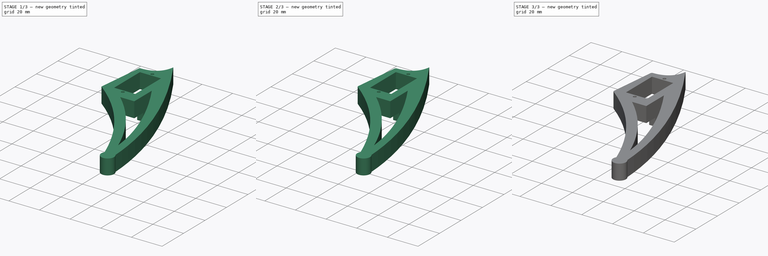
[diagram: build sequence overview — one tinted view per stage of 3, left to right]
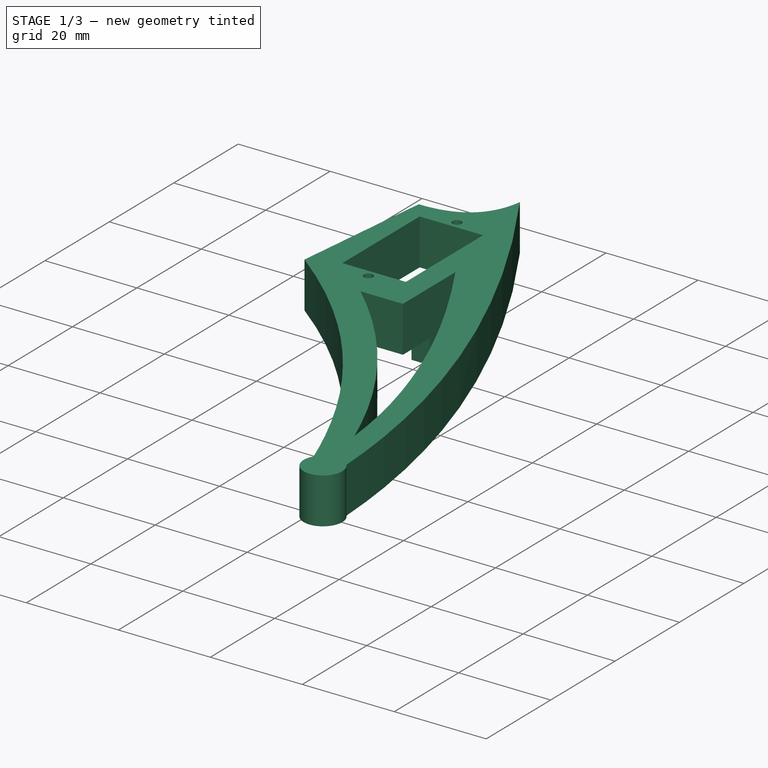
[diagram: stage 1 of 3 — iso view after this stage's code; geometry added in this stage tinted green]
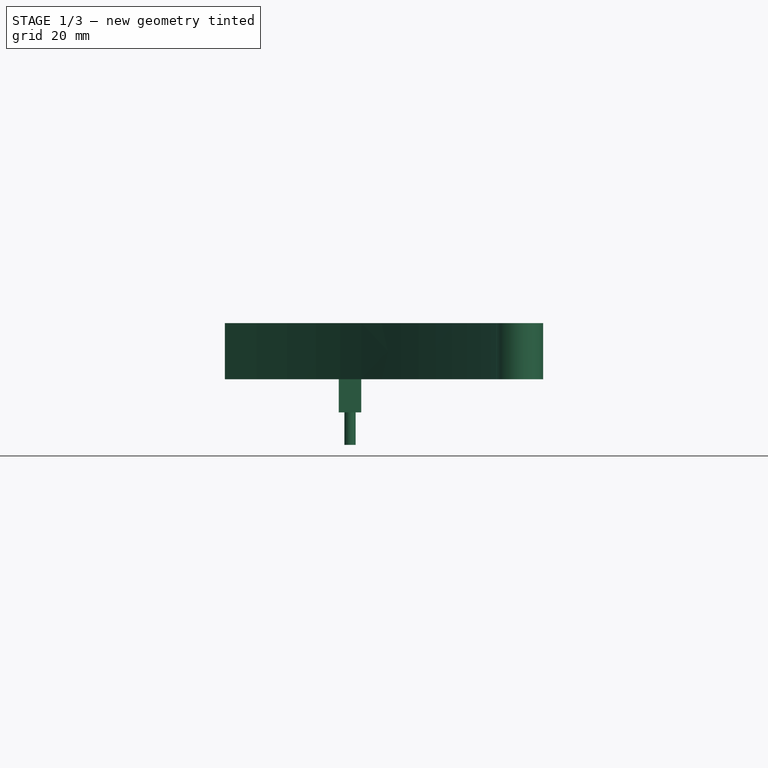
[diagram: stage 1 of 3 — front view after this stage's code; geometry added in this stage tinted green]
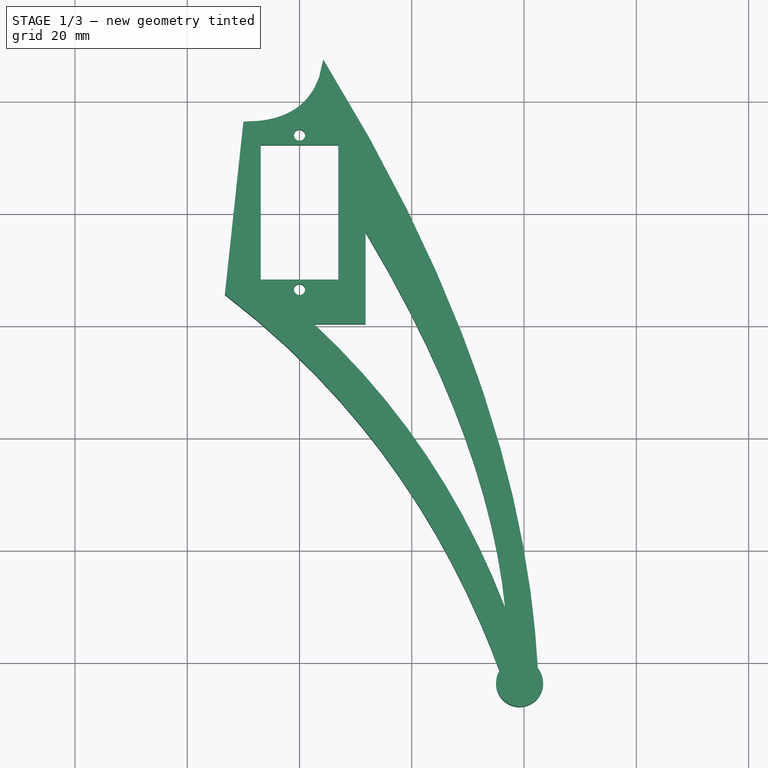
[diagram: stage 1 of 3 — top view after this stage's code; geometry added in this stage tinted green]
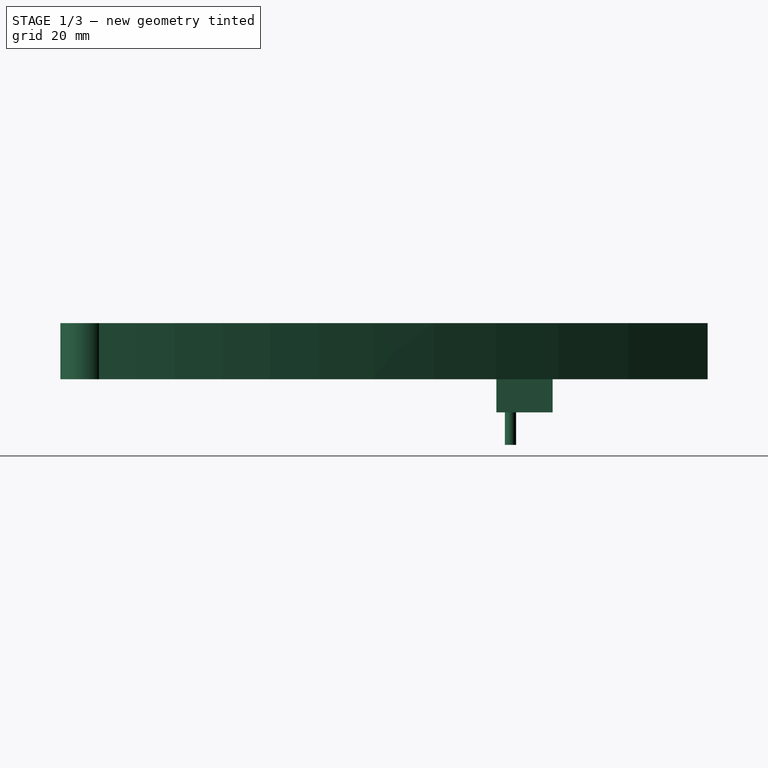
[diagram: stage 1 of 3 — right view after this stage's code; geometry added in this stage tinted green]
FCSTD DOCUMENT  (FreeCAD 0.21R33668 +26 (Git))
Label: pata-apoyo
License: All rights reserved
LicenseURL: http://en.wikipedia.org/wiki/All_rights_reserved
objects: Part::Cylinder×2, Part::Cut×2, Sketcher::SketchObject×1, Part::Extrusion×1, Part::Fillet×1, Part::Box×1, Part::MultiFuse×1, App::DocumentObjectGroup×1
note: 9 computed .brp shape members not serialized (recipe doc carries the construction recipe); baked Part::Feature solids carry a one-line shape summary decoded from their .brp

FEATURE [Sketcher::SketchObject] Sketch003
  FullyConstrained = false
  sketch-geometry (40):
    g0: LineSegment StartX=-6.9 StartY=12 StartZ=0 EndX=-6.9 EndY=-12 EndZ=0
    g1: LineSegment StartX=-6.9 StartY=-12 StartZ=0 EndX=6.9 EndY=-12 EndZ=0
    g2: LineSegment StartX=6.9 StartY=-12 StartZ=0 EndX=6.9 EndY=12 EndZ=0
    g3: LineSegment StartX=6.9 StartY=12 StartZ=0 EndX=-6.9 EndY=12 EndZ=0
    g4: LineSegment StartX=-10 StartY=16.1284 StartZ=0 EndX=-13.2973 EndY=-14.6392 EndZ=0
    g5: Circle CenterX=0 CenterY=-13.75 CenterZ=0 NormalX=0 NormalY=0 NormalZ=1 AngleXU=0 Radius=1
    g6: Circle CenterX=0 CenterY=13.75 CenterZ=0 NormalX=0 NormalY=0 NormalZ=1 AngleXU=0 Radius=1
    g7: Circle CenterX=-13.2973 CenterY=-14.6392 CenterZ=0 NormalX=0 NormalY=0 NormalZ=1 AngleXU=0 Radius=1
    g8: Circle CenterX=20.3473 CenterY=-40.3456 CenterZ=0 NormalX=0 NormalY=0 NormalZ=1 AngleXU=0 Radius=1
    g9: Circle CenterX=35.6272 CenterY=-81.673 CenterZ=0 NormalX=0 NormalY=0 NormalZ=1 AngleXU=0 Radius=1
    g10: BSplineCurve PolesCount=3 KnotsCount=2 Degree=2 IsPeriodic=0
    g11: GeomPoint X=-13.2973 Y=-14.6392 Z=0
    g12: GeomPoint X=35.6272 Y=-81.673 Z=0
    g13: Circle CenterX=2.56915 CenterY=-19.8919 CenterZ=0 NormalX=0 NormalY=0 NormalZ=1 AngleXU=0 Radius=1
    g14: Circle CenterX=25.2995 CenterY=-40.9646 CenterZ=0 NormalX=0 NormalY=0 NormalZ=1 AngleXU=0 Radius=1
    g15: Circle CenterX=36.6481 CenterY=-70.471 CenterZ=0 NormalX=0 NormalY=0 NormalZ=1 AngleXU=0 Radius=1
    g16: BSplineCurve PolesCount=3 KnotsCount=2 Degree=2 IsPeriodic=0
    g17: GeomPoint X=2.56915 Y=-19.8919 Z=0
    g18: GeomPoint X=36.6481 Y=-70.471 Z=0
    g19: Circle CenterX=36.6481 CenterY=-70.471 CenterZ=0 NormalX=0 NormalY=0 NormalZ=1 AngleXU=0 Radius=1
    g20: Circle CenterX=33.5686 CenterY=-40 CenterZ=0 NormalX=0 NormalY=0 NormalZ=1 AngleXU=0 Radius=1
    g21: Circle CenterX=11.784 CenterY=-3.5789 CenterZ=0 NormalX=0 NormalY=0 NormalZ=1 AngleXU=0 Radius=1
    g22: BSplineCurve PolesCount=3 KnotsCount=2 Degree=2 IsPeriodic=0
    g23: GeomPoint X=36.6481 Y=-70.471 Z=0
    g24: GeomPoint X=11.784 Y=-3.5789 Z=0
    g25: ArcOfCircle CenterX=39.2027 CenterY=-83.8716 CenterZ=0 NormalX=0 NormalY=0 NormalZ=1 AngleXU=0 Radius=4.19733 StartAngle=2.59028 EndAngle=6.96895
    g26: Circle CenterX=4.23934 CenterY=27.2126 CenterZ=0 NormalX=0 NormalY=0 NormalZ=1 AngleXU=0 Radius=1
    g27: Circle CenterX=39.7215 CenterY=-30.2088 CenterZ=0 NormalX=0 NormalY=0 NormalZ=1 AngleXU=0 Radius=1
    g28: Circle CenterX=42.4511 CenterY=-81.2136 CenterZ=0 NormalX=0 NormalY=0 NormalZ=1 AngleXU=0 Radius=1
    g29: BSplineCurve PolesCount=3 KnotsCount=2 Degree=2 IsPeriodic=0
    g30: GeomPoint X=4.23934 Y=27.2126 Z=0
    g31: GeomPoint X=42.4511 Y=-81.2136 Z=0
    g32: LineSegment StartX=2.56915 StartY=-19.8919 StartZ=0 EndX=11.784 EndY=-19.8919 EndZ=0
    g33: LineSegment StartX=11.784 StartY=-19.8919 StartZ=0 EndX=11.784 EndY=-3.5789 EndZ=0
    g34: Circle CenterX=-10 CenterY=16.1284 CenterZ=0 NormalX=0 NormalY=0 NormalZ=1 AngleXU=0 Radius=1
    g35: Circle CenterX=2.6632 CenterY=16.087 CenterZ=0 NormalX=0 NormalY=0 NormalZ=1 AngleXU=0 Radius=1
    g36: Circle CenterX=4.23934 CenterY=27.2126 CenterZ=0 NormalX=0 NormalY=0 NormalZ=1 AngleXU=0 Radius=1
    g37: BSplineCurve PolesCount=3 KnotsCount=2 Degree=2 IsPeriodic=0
    g38: GeomPoint X=-10 Y=16.1284 Z=0
    g39: GeomPoint X=4.23934 Y=27.2126 Z=0
  constraints (68):
    c: Vertical(g0)
    c: Coincident(g0,g1)
    c: Horizontal(g1)
    c: Coincident(g1,g2)
    c: Vertical(g2)
    c: Coincident(g2,g3)
    c: Coincident(g3,g0)
    c: Horizontal(g3)
    c: Distance(g3) = 13.8
    c: Distance(g2) = 24
    c: Symmetric(g0,g1,g-1)
    c: Diameter(g5) = 2
    c: Distance(g5,g1) = 1.75
    c: Symmetric(g5,g6,g-1)
    c: Diameter(g6) = 2
    c: Coincident(g10,g4)
    c: Weight(g7) = 1
    c: Equal(g7,g8)
    c: Equal(g7,g9)
    c: InternalAlignment(g7,g10)
    c: InternalAlignment(g8,g10)
    c: InternalAlignment(g9,g10)
    c: InternalAlignment(g11,g10)
    c: InternalAlignment(g12,g10)
    c: Weight(g13) = 1
    c: Equal(g13,g14)
    c: Equal(g13,g15)
    c: InternalAlignment(g13,g16)
    c: InternalAlignment(g14,g16)
    c: InternalAlignment(g15,g16)
    c: InternalAlignment(g17,g16)
    c: InternalAlignment(g18,g16)
    c: Coincident(g22,g16)
    c: Weight(g19) = 1
    c: Equal(g19,g20)
    c: Equal(g19,g21)
    c: InternalAlignment(g19,g22)
    c: InternalAlignment(g20,g22)
    c: InternalAlignment(g21,g22)
    c: InternalAlignment(g23,g22)
    c: InternalAlignment(g24,g22)
    c: Coincident(g25,g10)
    c: Weight(g26) = 1
    c: Equal(g26,g27)
    c: Equal(g26,g28)
    c: Coincident(g29,g25)
    c: InternalAlignment(g26,g29)
    c: InternalAlignment(g27,g29)
    c: InternalAlignment(g28,g29)
    c: InternalAlignment(g30,g29)
    c: InternalAlignment(g31,g29)
    c: DistanceY(g25,g4) = 100
    c: Coincident(g32,g16)
    c: Horizontal(g32)
    c: Coincident(g32,g33)
    c: Coincident(g33,g22)
    c: Vertical(g33)
    c: DistanceX(g4,g25) = 52.5
    c: Coincident(g37,g4)
    c: Weight(g34) = 1
    c: Equal(g34,g35)
    c: Equal(g34,g36)
    c: Coincident(g37,g29)
    c: InternalAlignment(g34,g37)
    c: InternalAlignment(g35,g37)
    c: InternalAlignment(g36,g37)
    c: InternalAlignment(g38,g37)
    c: InternalAlignment(g39,g37)
FEATURE [Part::Extrusion] Extrude003  label="pata-apoyo003"
  Base = -> Sketch003
  Dir = (0,0,1)
  DirMode = 2
  FaceMakerClass = Part::FaceMakerBullseye
  LengthFwd = 10
  LengthRev = 0
  Solid = true
  Symmetric = false
FEATURE [Part::Box] Box008  label="Cube"
  AttacherType = Attacher::AttachEngine3D
  Height = 8.9
  Length = 4
  Placement = pos=(7,-10.4,-5.9) rot=(0,0,1;0rad)
  Width = 10
FEATURE [Part::Cylinder] Cylinder019  label="taladro-union-1"
  Angle = 360
  AttacherType = Attacher::AttachEngine3D
  FirstAngle = 0
  Height = 10
  Placement = pos=(9,-7.9,-11.7) rot=(0,0,1;0rad)
  Radius = 1
  SecondAngle = 0
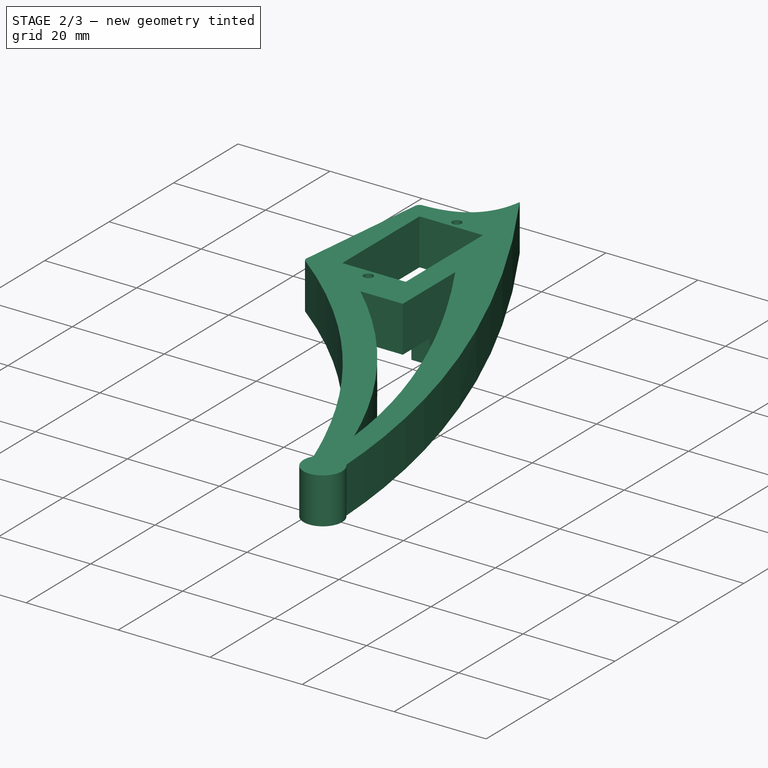
[diagram: stage 2 of 3 — iso view after this stage's code; geometry added in this stage tinted green]
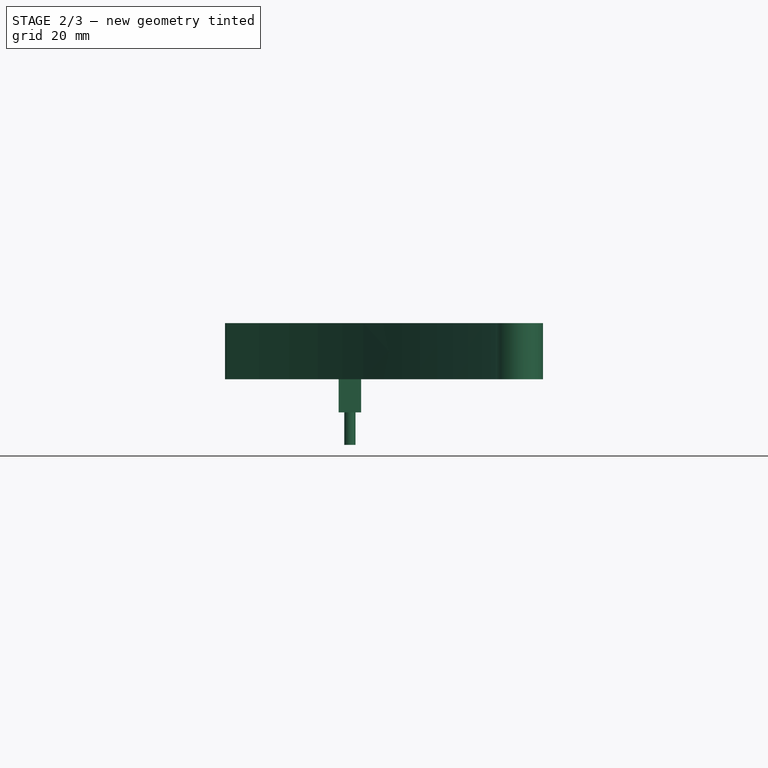
[diagram: stage 2 of 3 — front view after this stage's code; geometry added in this stage tinted green]
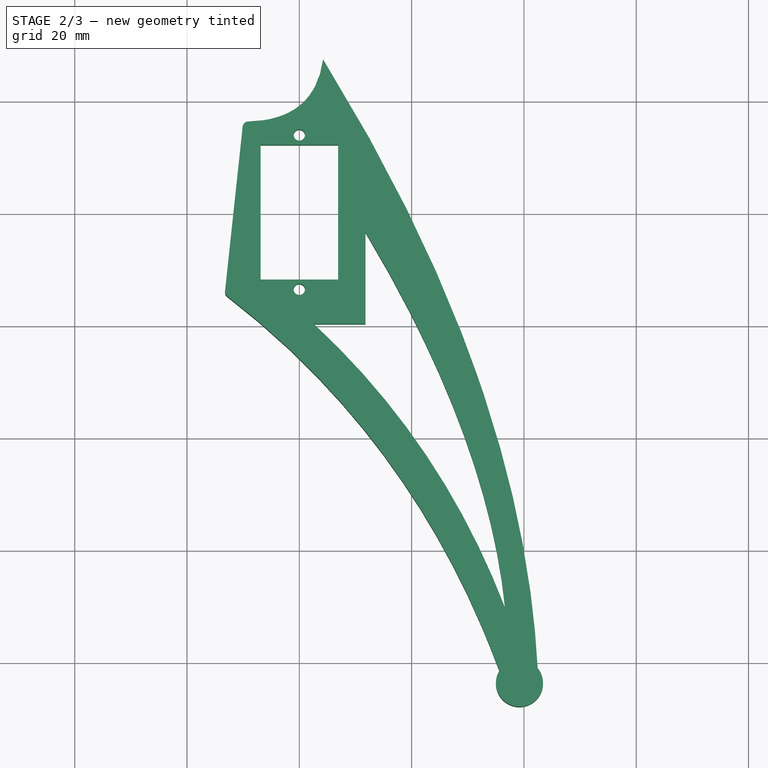
[diagram: stage 2 of 3 — top view after this stage's code; geometry added in this stage tinted green]
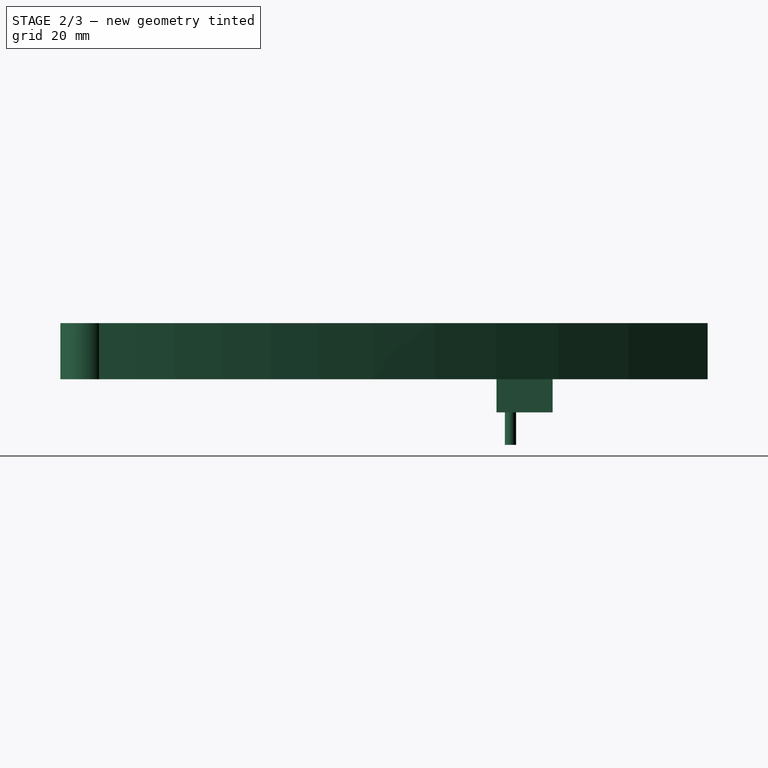
[diagram: stage 2 of 3 — right view after this stage's code; geometry added in this stage tinted green]
FEATURE [Part::Fillet] Fillet001
  Base = -> Extrude003
  Edges = 2 edges r=1: [Edge1,Edge2]
FEATURE [Part::MultiFuse] Fusion012  label="pata"
  Refine = true
  Shapes = -> [Fillet001,Box008]
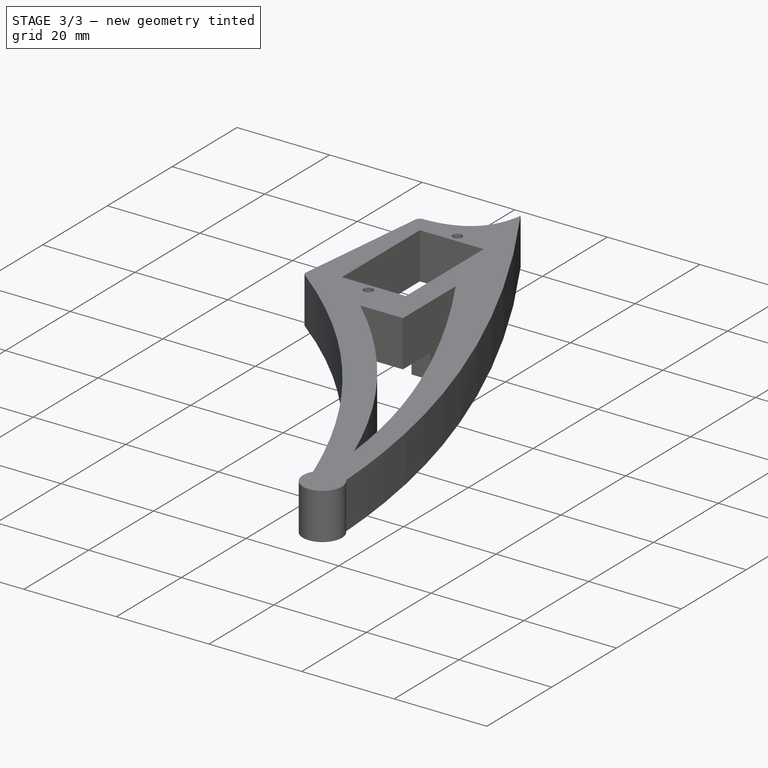
[diagram: stage 3 of 3 — iso view after this stage's code; geometry added in this stage tinted green]
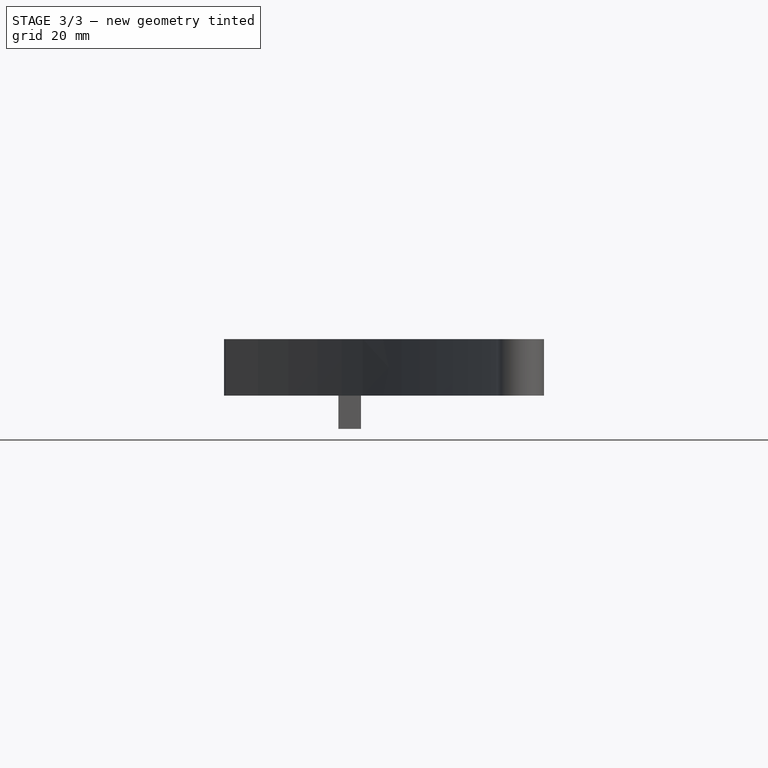
[diagram: stage 3 of 3 — front view after this stage's code; geometry added in this stage tinted green]
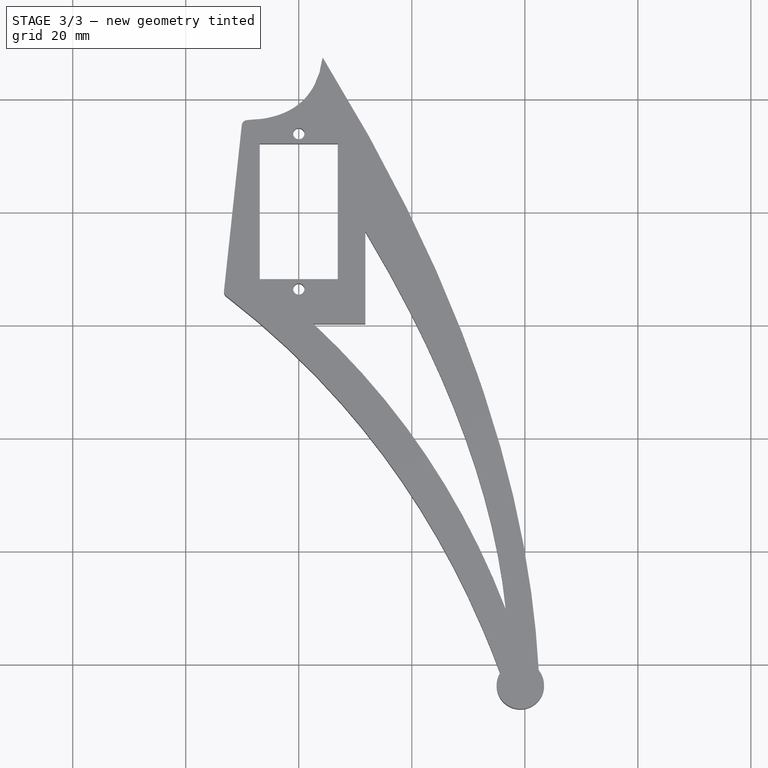
[diagram: stage 3 of 3 — top view after this stage's code; geometry added in this stage tinted green]
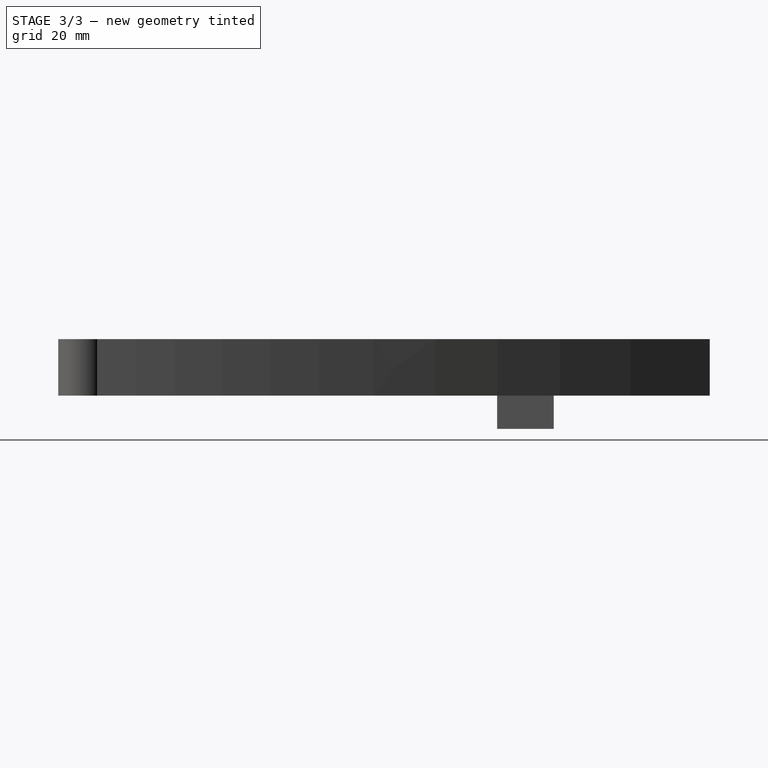
[diagram: stage 3 of 3 — right view after this stage's code; geometry added in this stage tinted green]
FEATURE [Part::Cylinder] Cylinder020  label="taladro-union-2"
  Angle = 360
  AttacherType = Attacher::AttachEngine3D
  FirstAngle = 0
  Height = 10
  Placement = pos=(9,-2.9,-11.7) rot=(0,0,1;0rad)
  Radius = 1
  SecondAngle = 0
FEATURE [Part::Cut] Cut006
  Base = -> Fusion012
  Refine = true
  Tool = -> Cylinder019
FEATURE [Part::Cut] Cut007  label="version-final"
  Base = -> Cut006
  Refine = true
  Tool = -> Cylinder020
FEATURE [App::DocumentObjectGroup] Group001  label="pata-apoyo-pieza"
  Group = -> [Cut007]
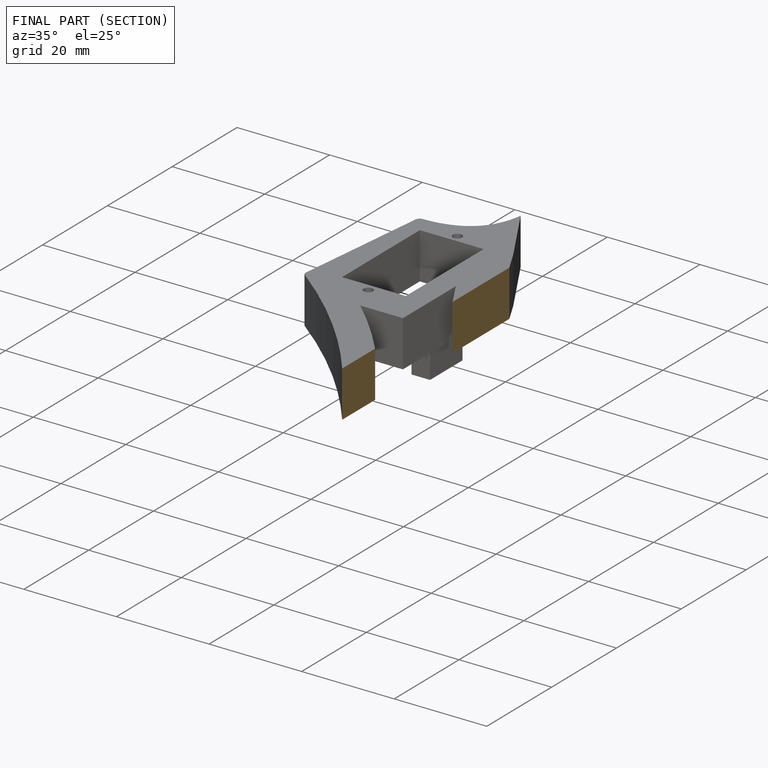
[diagram: finished part — half-section view (interior)]
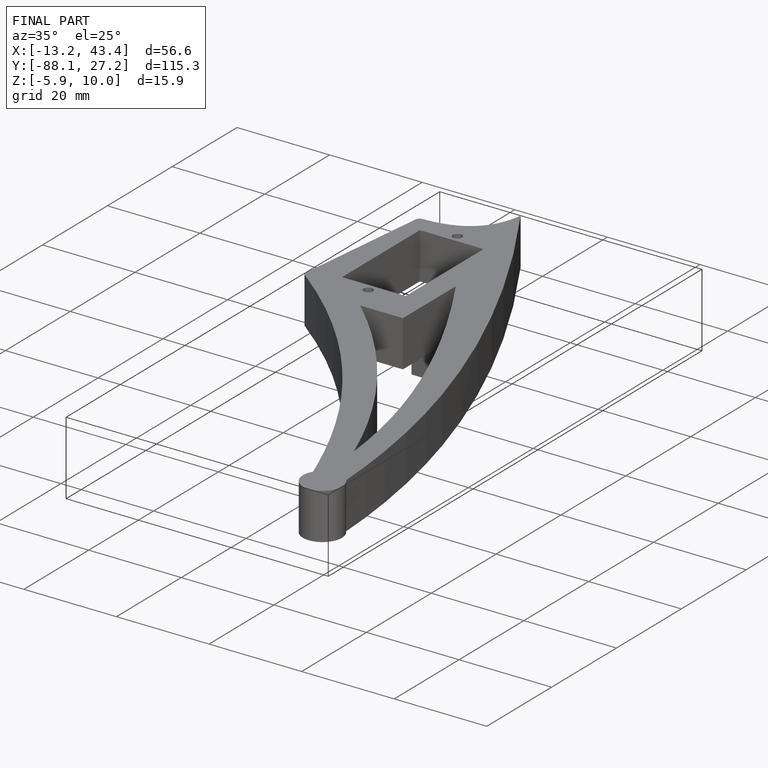
[diagram: finished part — iso view with bounding-box wireframe]
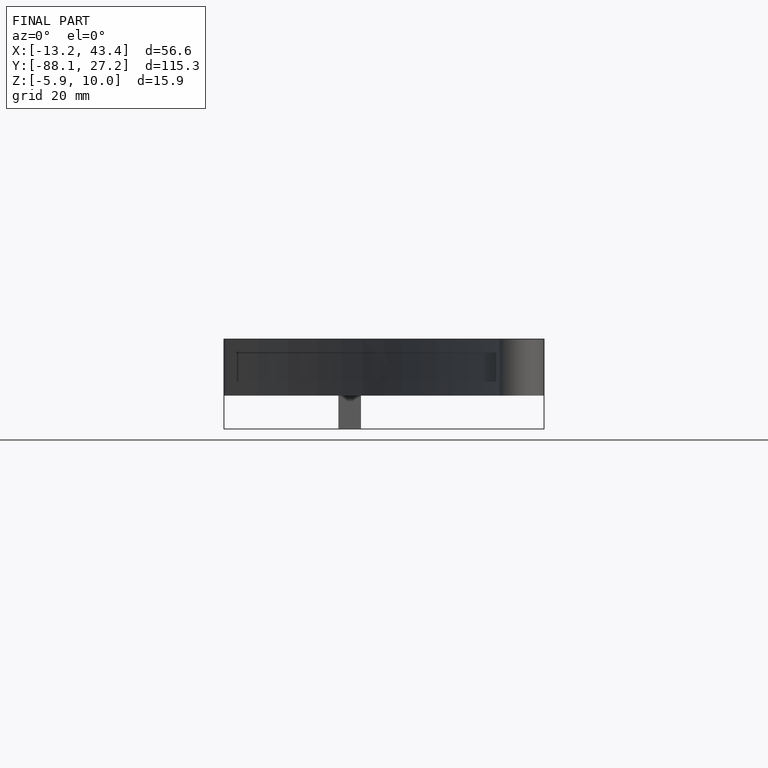
[diagram: finished part — front view with bounding-box wireframe]
